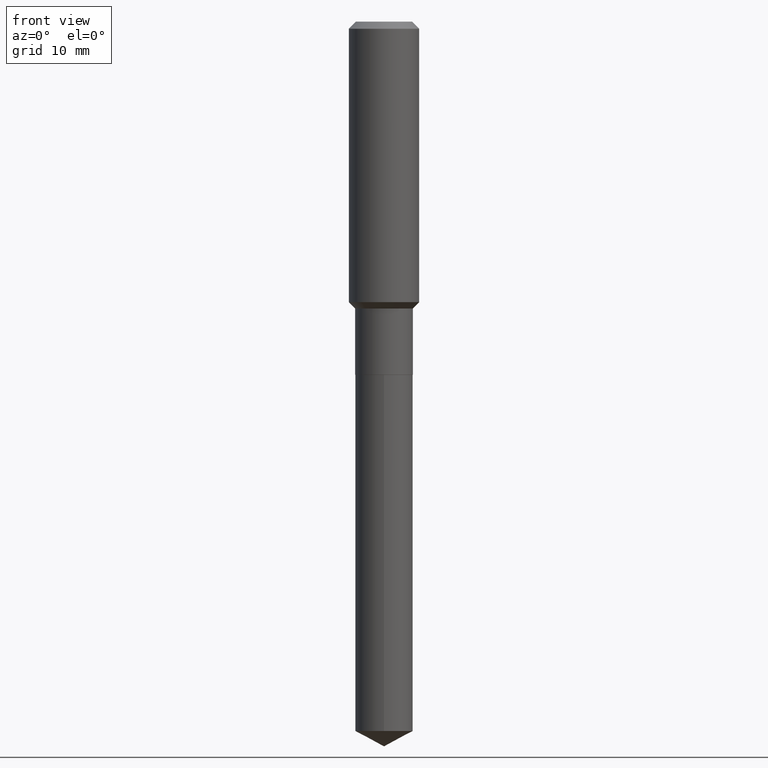
[diagram: clean part render]
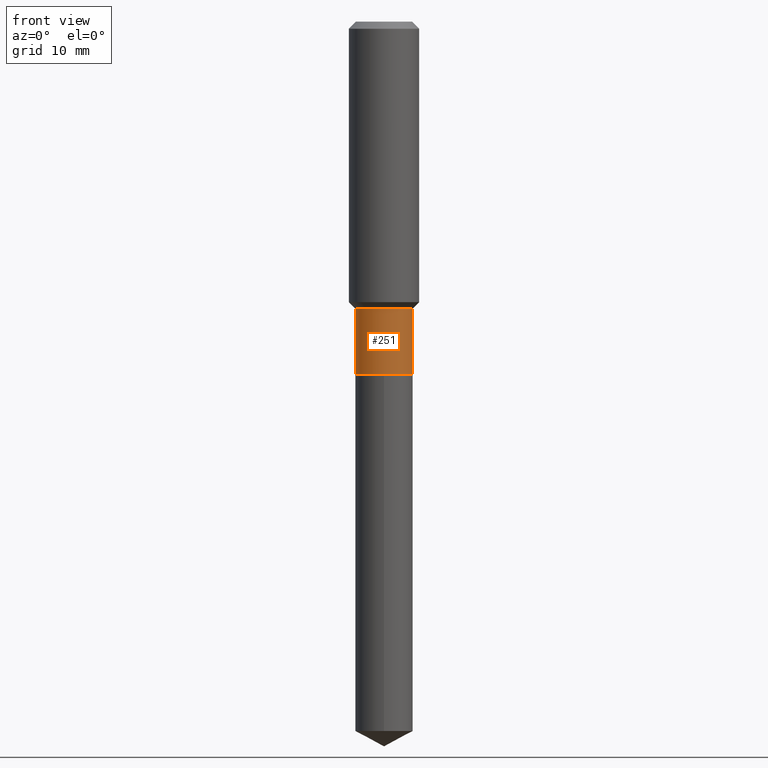
[diagram: same view with one face highlighted and labeled with its STEP entity id]
A machine part, front view. The second image highlights one B-rep face of the part: STEP entity #251.
In plain terms, the highlighted cylindrical surface (edge-blend (fillet) strip) has radius 4.0996 mm, axis along (-0, 0, 1).
Its self-contained STEP definition (entity closure, byte-faithful):
#3 = CARTESIAN_POINT ( 'NONE',  ( -0.1613999999999999602, -5.104506787614907823E-15, -1.605099999999999971 ) ) ;
#5 = ORIENTED_EDGE ( 'NONE', *, *, #49, .F. ) ;
#41 = CYLINDRICAL_SURFACE ( 'NONE', #410, 0.1613999999999999879 ) ;
#47 = EDGE_CURVE ( 'NONE', #259, #162, #359, .T. ) ;
#49 = EDGE_CURVE ( 'NONE', #259, #231, #67, .T. ) ;
#67 = LINE ( 'NONE', #483, #360 ) ;
#76 = CARTESIAN_POINT ( 'NONE',  ( 0.1613999999999999879, -1.127050176178563330E-15, 7.870149316134639316E-30 ) ) ;
#81 = CARTESIAN_POINT ( 'NONE',  ( 3.925221980807762664E-29, -5.604176696977133215E-15, -1.605099999999999971 ) ) ;
#83 = DIRECTION ( 'NONE',  ( 1.000000000000000000, -6.982962677686267499E-15, 0.000000000000000000 ) ) ;
#85 = VECTOR ( 'NONE', #454, 39.37007874015748143 ) ;
#90 = ORIENTED_EDGE ( 'NONE', *, *, #419, .F. ) ;
#104 = CARTESIAN_POINT ( 'NONE',  ( -0.1614000000000000157, -5.104506787614907823E-15, -1.975800000000000001 ) ) ;
#107 = EDGE_LOOP ( 'NONE', ( #5, #225, #273, #90 ) ) ;
#162 = VERTEX_POINT ( 'NONE', #182 ) ;
#176 = DIRECTION ( 'NONE',  ( 1.000000000000000000, -6.982962677686265133E-15, 0.000000000000000000 ) ) ;
#179 = CARTESIAN_POINT ( 'NONE',  ( 4.831757267260592925E-29, -6.898468829286286448E-15, -1.975800000000000001 ) ) ;
#182 = CARTESIAN_POINT ( 'NONE',  ( 0.1614000000000000157, -8.025519005464850173E-15, -1.975800000000000001 ) ) ;
#186 = LINE ( 'NONE', #76, #85 ) ;
#218 = FACE_OUTER_BOUND ( 'NONE', #107, .T. ) ;
#225 = ORIENTED_EDGE ( 'NONE', *, *, #47, .T. ) ;
#231 = VERTEX_POINT ( 'NONE', #3 ) ;
#251 = ADVANCED_FACE ( 'NONE', ( #218 ), #41, .T. ) ;
#259 = VERTEX_POINT ( 'NONE', #104 ) ;
#262 = CIRCLE ( 'NONE', #434, 0.1613999999999999602 ) ;
#263 = DIRECTION ( 'NONE',  ( -2.445468806185136597E-29, 3.491481338843145583E-15, 1.000000000000000000 ) ) ;
#273 = ORIENTED_EDGE ( 'NONE', *, *, #308, .T. ) ;
#295 = DIRECTION ( 'NONE',  ( 1.000000000000000000, -6.982962677686266711E-15, 4.876176775795935232E-29 ) ) ;
#308 = EDGE_CURVE ( 'NONE', #162, #409, #186, .T. ) ;
#327 = DIRECTION ( 'NONE',  ( -2.445468806185136597E-29, 3.491481338843145583E-15, 1.000000000000000000 ) ) ;
#350 = DIRECTION ( 'NONE',  ( -2.445468806185136597E-29, 3.491481338843145583E-15, 1.000000000000000000 ) ) ;
#358 = DIRECTION ( 'NONE',  ( -2.445468806185136877E-29, 3.491481338843145188E-15, 1.000000000000000000 ) ) ;
#359 = CIRCLE ( 'NONE', #476, 0.1614000000000000157 ) ;
#360 = VECTOR ( 'NONE', #358, 39.37007874015748143 ) ;
#409 = VERTEX_POINT ( 'NONE', #462 ) ;
#410 = AXIS2_PLACEMENT_3D ( 'NONE', #456, #263, #295 ) ;
#419 = EDGE_CURVE ( 'NONE', #231, #409, #262, .T. ) ;
#434 = AXIS2_PLACEMENT_3D ( 'NONE', #81, #350, #83 ) ;
#454 = DIRECTION ( 'NONE',  ( -2.445468806185136877E-29, 3.491481338843145188E-15, 1.000000000000000000 ) ) ;
#456 = CARTESIAN_POINT ( 'NONE',  ( 0.000000000000000000, 0.000000000000000000, 0.000000000000000000 ) ) ;
#462 = CARTESIAN_POINT ( 'NONE',  ( 0.1613999999999999602, -6.731226873155696151E-15, -1.605099999999999971 ) ) ;
#476 = AXIS2_PLACEMENT_3D ( 'NONE', #179, #327, #176 ) ;
#483 = CARTESIAN_POINT ( 'NONE',  ( -0.1613999999999999879, 1.146815975516801614E-15, -7.939161235671417487E-30 ) ) ;